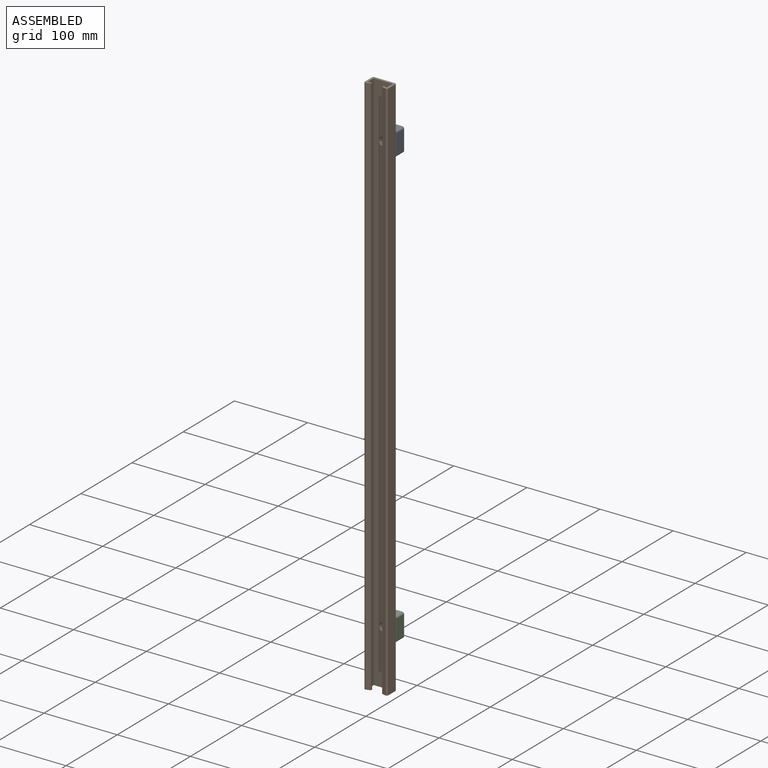
[diagram: assembled view]
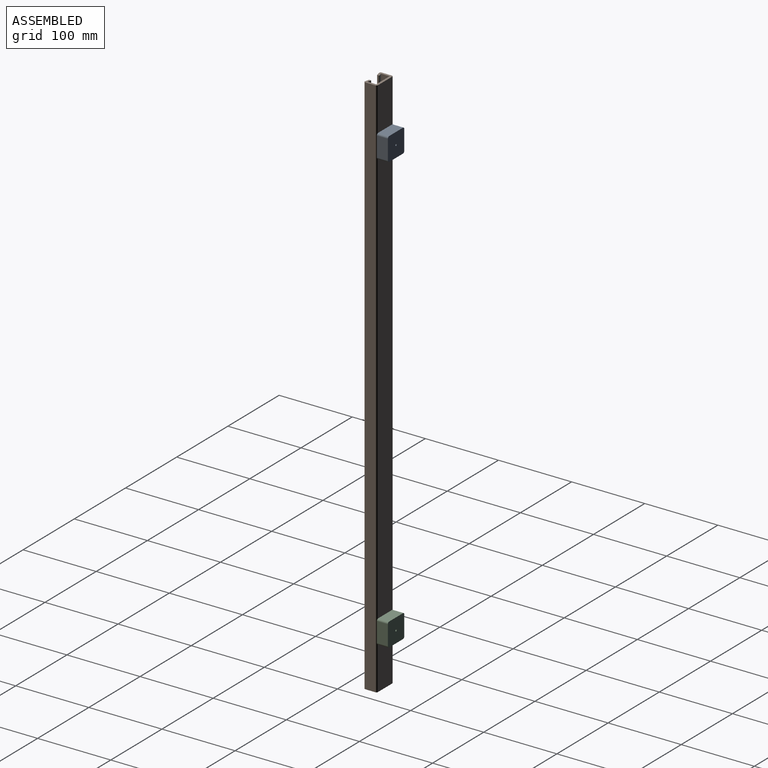
[diagram: assembled view, second angle]
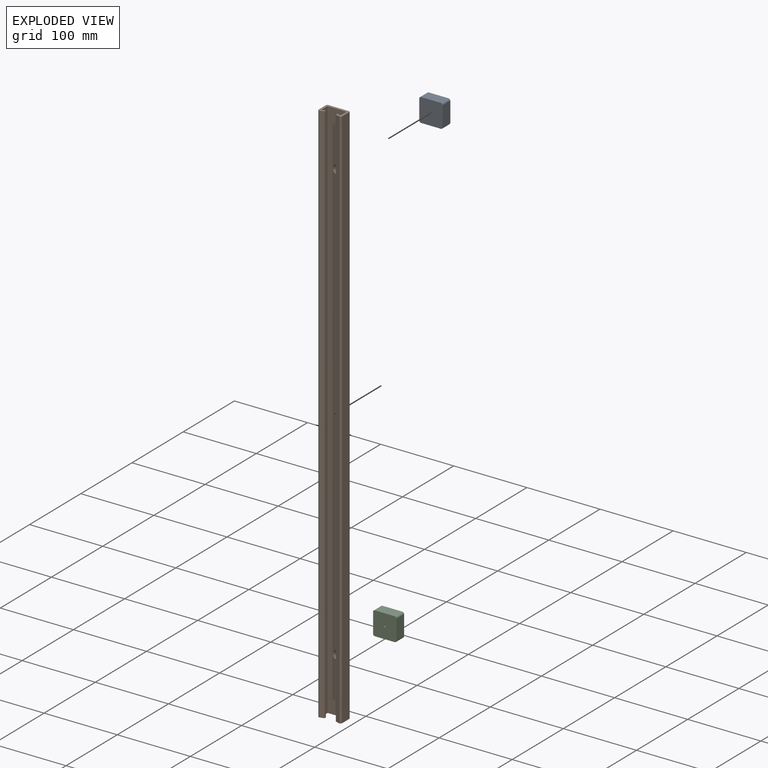
[diagram: exploded view]
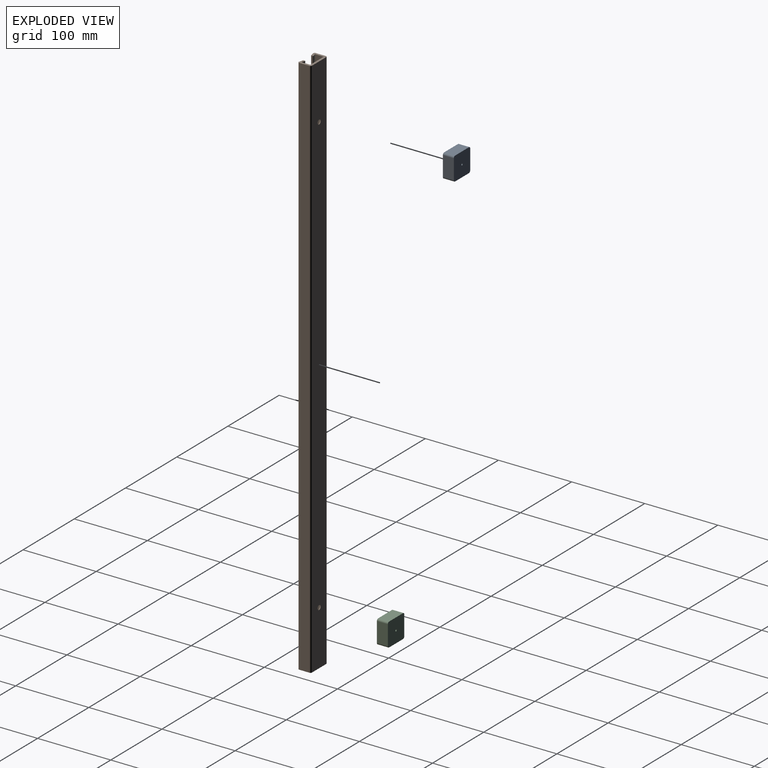
[diagram: exploded view, second angle]
ASSEMBLY  parts=3 mates=2
PART A: 11 faces, bbox 32x15x32 mm
  f0: plane 27x15mm, normal (0,0,-1), area 405mm2, adj f5,f6,f7,f10
  f1: plane 27x15mm, normal (1,0,0), area 405mm2, adj f5,f6,f7,f8
  f2: plane 27x15mm, normal (0,0,1), area 405mm2, adj f5,f6,f8,f9
  f3: cylinder r=1.25mm len=15mm, axis (0,1,0), area 117.8mm2, adj f5,f6
  f4: plane 27x15mm, normal (-1,0,0), area 405mm2, adj f5,f6,f9,f10
  f5: plane 32x32mm, normal (0,-1,0), area 1013.7mm2, adj f0,f1,f2,f3,f4,f7,f8,f9
  f6: plane 32x32mm, normal (0,1,0), area 1013.7mm2, adj f0,f1,f2,f3,f4,f7,f8,f9
  f7: cylinder r=2.5mm len=15mm, axis (0,-1,0), area 58.9mm2, adj f0,f1,f5,f6
  f8: cylinder r=2.5mm len=15mm, axis (0,1,0), area 58.9mm2, adj f1,f2,f5,f6
  f9: cylinder r=2.5mm len=15mm, axis (0,-1,0), area 58.9mm2, adj f2,f4,f5,f6
  f10: cylinder r=2.5mm len=15mm, axis (0,1,0), area 58.9mm2, adj f0,f4,f5,f6
PART B: 24 faces, bbox 32x750x18 mm
  f0: plane 750x2.07mm, normal (1,0,0), area 1552.9mm2, adj f1,f19,f20,f21
  f1: cylinder r=0.5mm len=750mm, axis (0,1,0), area 490.9mm2, adj f0,f2,f20,f21
  f2: plane 750x5.41mm, normal (0.26,0,0.97), area 4202mm2, adj f1,f3,f20,f21
  f3: cylinder r=2mm len=750mm, axis (0,1,0), area 2748.9mm2, adj f2,f4,f20,f21
  f4: plane 750x14mm, normal (-1,0,0), area 10500mm2, adj f3,f5,f20,f21
  f5: cylinder r=2mm len=750mm, axis (0,1,0), area 2356.2mm2, adj f4,f6,f20,f21
  f6: plane 750x28mm, normal (0,0,-1), area 20943.5mm2, adj f5,f7,f20,f21,f22,f23
  f7: cylinder r=2mm len=750mm, axis (0,1,0), area 2356.2mm2, adj f6,f8,f20,f21
  f8: plane 750x14mm, normal (1,0,0), area 10500mm2, adj f7,f9,f20,f21
  f9: cylinder r=2mm len=750mm, axis (0,1,0), area 2748.9mm2, adj f8,f10,f20,f21
  f10: plane 750x5.41mm, normal (-0.26,0,0.97), area 4202mm2, adj f9,f11,f20,f21
  f11: cylinder r=0.5mm len=750mm, axis (0,1,0), area 490.9mm2, adj f10,f12,f20,f21
  f12: plane 750x2.07mm, normal (-1,0,0), area 1552.9mm2, adj f11,f13,f20,f21
  f13: cylinder r=0.5mm len=750mm, axis (0,1,0), area 687.2mm2, adj f12,f14,f20,f21
  f14: plane 750x4.67mm, normal (0.26,0,-0.97), area 3626.5mm2, adj f13,f15,f20,f21
  f15: plane 750x11.7mm, normal (-1,0,0), area 8772.6mm2, adj f14,f16,f20,f21
  f16: plane 750x26mm, normal (0,0,1), area 19273.8mm2, adj f15,f17,f20,f21,f22,f23
  f17: plane 750x11.7mm, normal (1,0,0), area 8772.6mm2, adj f16,f18,f20,f21
  f18: plane 750x4.67mm, normal (-0.26,0,-0.97), area 3626.5mm2, adj f17,f19,f20,f21
  f19: cylinder r=0.5mm len=750mm, axis (0,1,0), area 687.2mm2, adj f0,f18,f20,f21
  f20: plane 32x18mm, normal (0,-1,0), area 215.1mm2, adj f0,f1,f2,f3,f4,f5,f6,f7
  f21: plane 32x18mm, normal (0,1,0), area 215.1mm2, adj f0,f1,f2,f3,f4,f5,f6,f7
  f22: cone r=6mm half-angle=45deg, axis (0,0,1), area 120mm2, adj f6,f16
  f23: cone r=6mm half-angle=45deg, axis (0,0,1), area 120mm2, adj f6,f16
PART C: same geometry as A
PLACE A t=(-13.29,-29.15,567.79)mm
PLACE B rot(axis=(1,0,0),90deg) t=(-13.29,-44.15,267.79)mm
PLACE C t=(-13.29,-29.15,-32.21)mm fixed
MATE fastened A.f3 <-> B.f23  axis (0,-1,0) through (-13.29,-44.15,567.79)mm
MATE fastened C.f3 <-> B.f22  axis (0,-1,0) through (-13.29,-44.15,-32.21)mm
